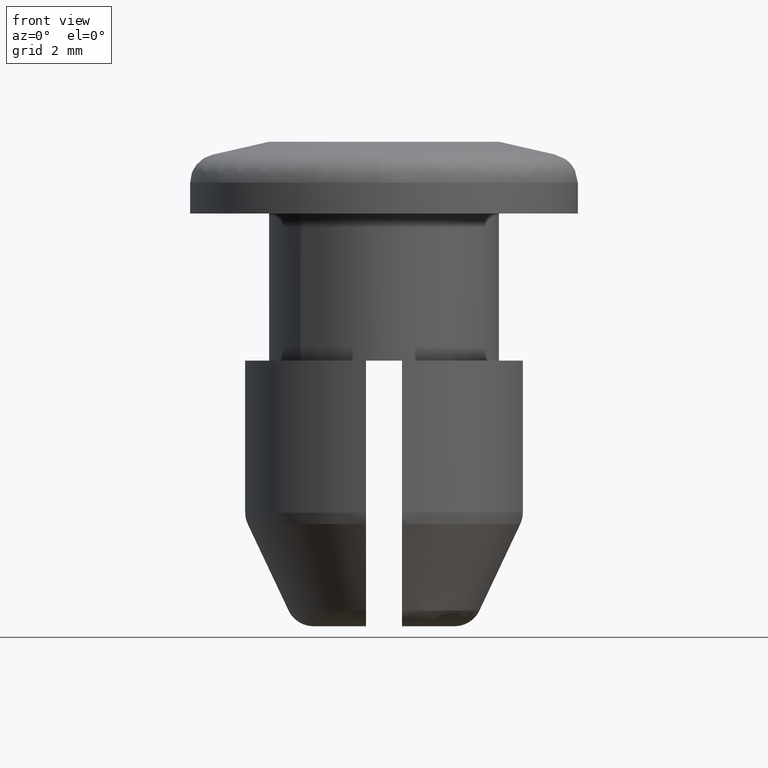
[diagram: clean part render]
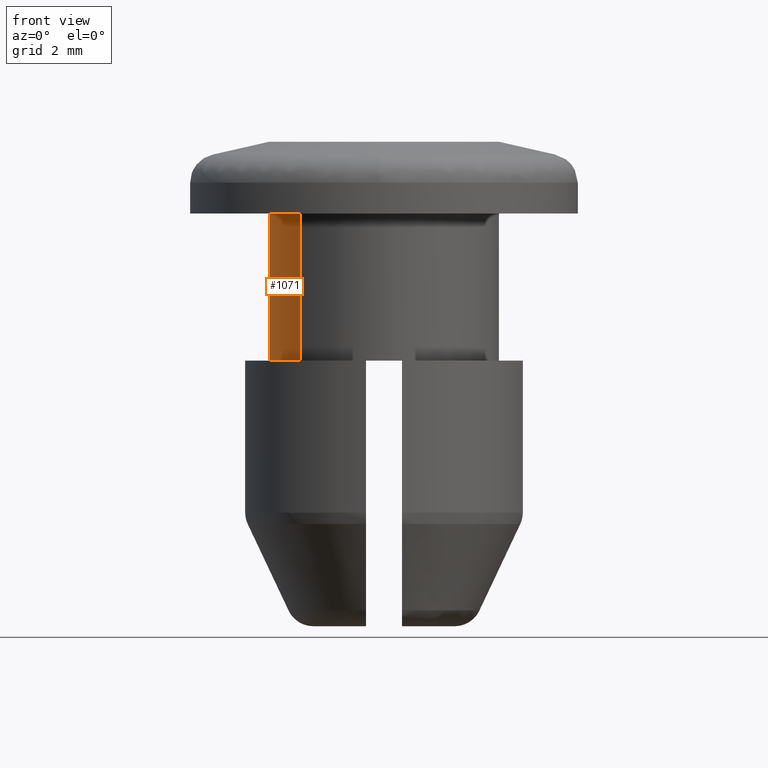
[diagram: same view with one face highlighted and labeled with its STEP entity id]
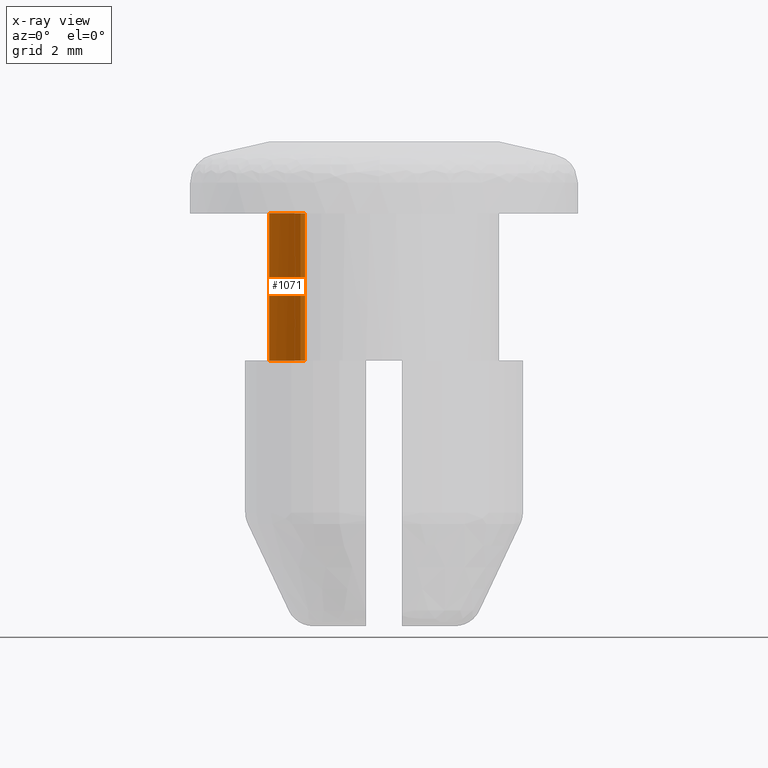
[diagram: x-ray of the same camera — body ghosted, the highlighted face saturated]
A machine part, front view. The second image highlights one B-rep face of the part: STEP entity #1071.
The next image is the same camera in x-ray: the body ghosted, the highlighted face saturated — about 12% of this face is hidden behind the body in this view.
In plain terms, the highlighted face is a freeform B-spline surface patch.
Its self-contained STEP definition (entity closure, byte-faithful):
#826=CARTESIAN_POINT('',(-2.321609453257532,-2.202300966386118,-2.0));
#827=VERTEX_POINT('',#826);
#845=CARTESIAN_POINT('',(-2.321609423222823,-2.202300998047945,-6.099999999999911));
#846=VERTEX_POINT('',#845);
#847=CARTESIAN_POINT('',(-2.321609423222823,-2.202300998047945,-6.099999999999911));
#848=CARTESIAN_POINT('',(-2.321609453257532,-2.202300966386118,-2.0));
#849=QUASI_UNIFORM_CURVE('',1,(#847,#848),.UNSPECIFIED.,.F.,.U.);
#850=EDGE_CURVE('',#846,#827,#849,.T.);
#942=CARTESIAN_POINT('',(-2.202300998047945,2.321609423222822,-6.099999999999917));
#943=VERTEX_POINT('',#942);
#957=CARTESIAN_POINT('',(-2.202301032864988,2.321609390195043,-1.999999999999999));
#958=VERTEX_POINT('',#957);
#959=CARTESIAN_POINT('',(-2.202300998047945,2.321609423222822,-6.099999999999917));
#960=CARTESIAN_POINT('',(-2.202301032864988,2.321609390195043,-1.999999999999999));
#961=QUASI_UNIFORM_CURVE('',1,(#959,#960),.UNSPECIFIED.,.F.,.U.);
#962=EDGE_CURVE('',#943,#958,#961,.T.);
#982=CARTESIAN_POINT('',(-2.202301093019909,2.321609333131504,-6.202500000000001));
#983=CARTESIAN_POINT('',(-4.523910426151414,0.119308240111595,-6.202500000000001));
#984=CARTESIAN_POINT('',(-2.321609333131504,-2.202301093019909,-6.202500000000001));
#985=CARTESIAN_POINT('',(-2.202301093019909,2.321609333131504,-1.894937499999999));
#986=CARTESIAN_POINT('',(-4.523910426151414,0.119308240111595,-1.894937499999999));
#987=CARTESIAN_POINT('',(-2.321609333131504,-2.202301093019909,-1.894937499999999));
#995=(BOUNDED_SURFACE()B_SPLINE_SURFACE(2,1,((#982,#985),(#983,#986),(#984,#987)),.UNSPECIFIED.,.F.,.F.,.U.)B_SPLINE_SURFACE_WITH_KNOTS((3,3),(2,2),(0.0,5.301933598375615),(0.0,4.307562500000002),.UNSPECIFIED.)GEOMETRIC_REPRESENTATION_ITEM()RATIONAL_B_SPLINE_SURFACE(((1.0,1.0),(0.707106781186548,0.707106781186548),(1.0,1.0)))REPRESENTATION_ITEM('')SURFACE());
#996=CARTESIAN_POINT('',(-3.200000000000000,0.0,-2.0));
#997=VERTEX_POINT('',#996);
#998=CARTESIAN_POINT('',(-3.200000000000000,0.0,-2.0));
#999=CARTESIAN_POINT('',(-3.200000000000001,-1.276323976468500,-2.000000000000000));
#1000=CARTESIAN_POINT('',(-2.321609453257532,-2.202300966386118,-2.000000000000000));
#1008=(BOUNDED_CURVE()B_SPLINE_CURVE(2,(#998,#999,#1000),.UNSPECIFIED.,.F.,.U.)B_SPLINE_CURVE_WITH_KNOTS((3,3),(0.0,0.121021325173780),.UNSPECIFIED.)CURVE()GEOMETRIC_REPRESENTATION_ITEM()RATIONAL_B_SPLINE_CURVE((1.0,0.858214698099128,0.853701757207920))REPRESENTATION_ITEM(''));
#1009=EDGE_CURVE('',#997,#827,#1008,.T.);
#1010=ORIENTED_EDGE('',*,*,#1009,.F.);
#1011=CARTESIAN_POINT('',(-2.202301032864988,2.321609390195043,-1.999999999999999));
#1012=CARTESIAN_POINT('',(-3.199999999999999,1.375182587707738,-2.0));
#1013=CARTESIAN_POINT('',(-3.200000000000000,0.0,-2.0));
#1021=(BOUNDED_CURVE()B_SPLINE_CURVE(2,(#1011,#1012,#1013),.UNSPECIFIED.,.F.,.U.)B_SPLINE_CURVE_WITH_KNOTS((3,3),(0.871021333816603,1.0),.UNSPECIFIED.)CURVE()GEOMETRIC_REPRESENTATION_ITEM()RATIONAL_B_SPLINE_CURVE((0.853701756563331,0.848892093213117,1.0))REPRESENTATION_ITEM(''));
#1022=EDGE_CURVE('',#958,#997,#1021,.T.);
#1023=ORIENTED_EDGE('',*,*,#1022,.F.);
#1024=ORIENTED_EDGE('',*,*,#962,.F.);
#1025=CARTESIAN_POINT('',(-3.160696125855820,0.500000000000000,-6.099999999999881));
#1026=VERTEX_POINT('',#1025);
#1027=CARTESIAN_POINT('',(-2.202300998047946,2.321609423222822,-6.099999999999917));
#1028=CARTESIAN_POINT('',(-2.990864825979363,1.573570263137158,-6.099999999999880));
#1029=CARTESIAN_POINT('',(-3.160696125855822,0.500000000000001,-6.099999999999881));
#1037=(BOUNDED_CURVE()B_SPLINE_CURVE(2,(#1027,#1028,#1029),.UNSPECIFIED.,.F.,.U.)B_SPLINE_CURVE_WITH_KNOTS((3,3),(0.479718116204389,1.0),.UNSPECIFIED.)CURVE()GEOMETRIC_REPRESENTATION_ITEM()RATIONAL_B_SPLINE_CURVE((0.904610816140017,0.900577880386592,1.0))REPRESENTATION_ITEM(''));
#1038=EDGE_CURVE('',#943,#1026,#1037,.T.);
#1039=ORIENTED_EDGE('',*,*,#1038,.T.);
#1040=CARTESIAN_POINT('',(-3.160696125855820,-0.500000000000011,-6.099999999999881));
#1041=VERTEX_POINT('',#1040);
#1042=CARTESIAN_POINT('',(-3.160696125855822,0.500000000000000,-6.099999999999881));
#1043=CARTESIAN_POINT('',(-3.239792625501865,-6.396793E-015,-6.099999999999881));
#1044=CARTESIAN_POINT('',(-3.160696125855820,-0.500000000000011,-6.099999999999881));
#1052=(BOUNDED_CURVE()B_SPLINE_CURVE(2,(#1042,#1043,#1044),.UNSPECIFIED.,.F.,.U.)CURVE()GEOMETRIC_REPRESENTATION_ITEM()QUASI_UNIFORM_CURVE()RATIONAL_B_SPLINE_CURVE((1.0,0.987717539329944,1.0))REPRESENTATION_ITEM(''));
#1053=EDGE_CURVE('',#1026,#1041,#1052,.T.);
#1054=ORIENTED_EDGE('',*,*,#1053,.T.);
#1055=CARTESIAN_POINT('',(-3.160696125855820,-0.500000000000011,-6.099999999999881));
#1056=CARTESIAN_POINT('',(-3.005442021550379,-1.481422092002839,-6.099999999999880));
#1057=CARTESIAN_POINT('',(-2.321609423222822,-2.202300998047945,-6.099999999999911));
#1065=(BOUNDED_CURVE()B_SPLINE_CURVE(2,(#1055,#1056,#1057),.UNSPECIFIED.,.F.,.U.)B_SPLINE_CURVE_WITH_KNOTS((3,3),(0.0,0.479718116204391),.UNSPECIFIED.)CURVE()GEOMETRIC_REPRESENTATION_ITEM()RATIONAL_B_SPLINE_CURVE((1.0,0.908329324130901,0.904610816140017))REPRESENTATION_ITEM(''));
#1066=EDGE_CURVE('',#1041,#846,#1065,.T.);
#1067=ORIENTED_EDGE('',*,*,#1066,.T.);
#1068=ORIENTED_EDGE('',*,*,#850,.T.);
#1069=EDGE_LOOP('',(#1010,#1023,#1024,#1039,#1054,#1067,#1068));
#1070=FACE_OUTER_BOUND('',#1069,.T.);
#1071=ADVANCED_FACE('',(#1070),#995,.T.);